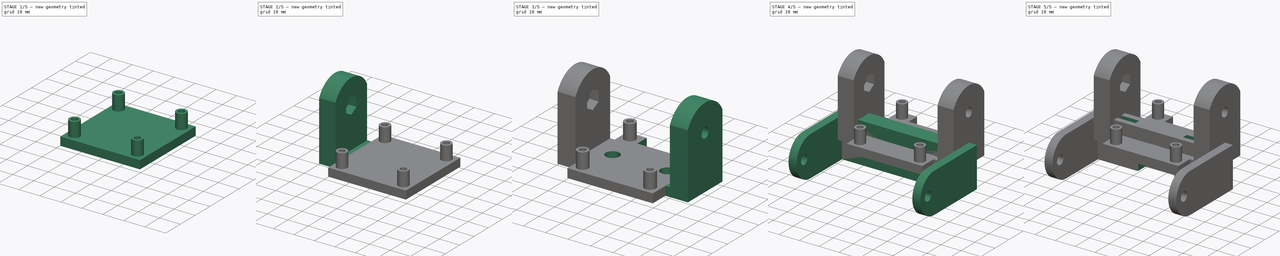
[diagram: build sequence overview — one tinted view per stage of 5, left to right]
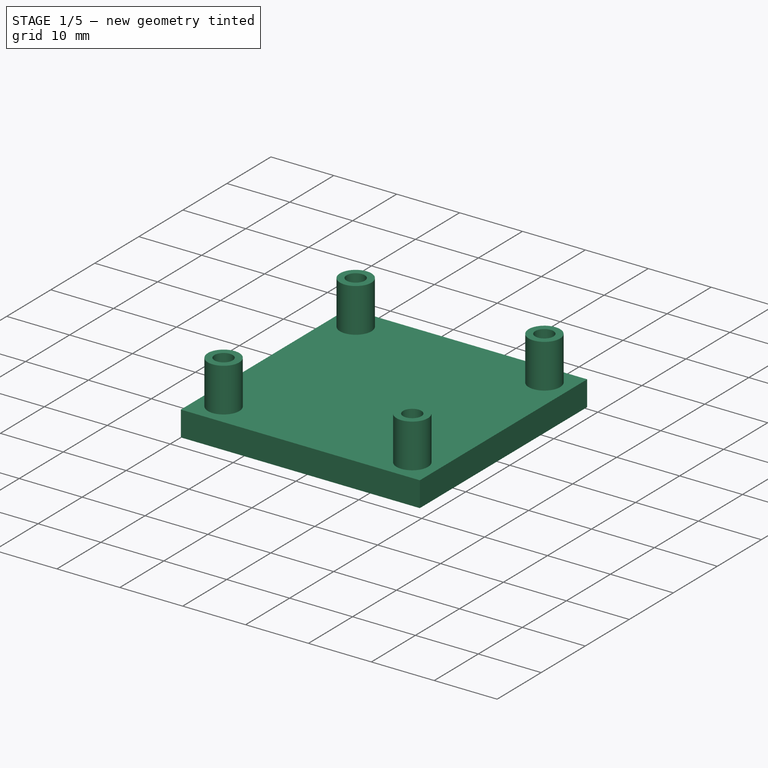
[diagram: stage 1 of 5 — iso view after this stage's code; geometry added in this stage tinted green]
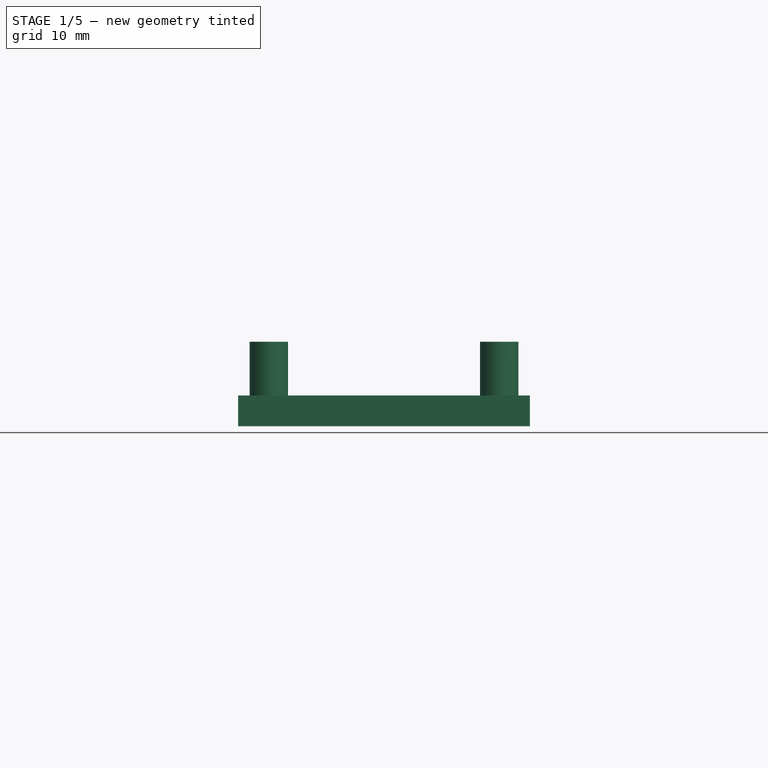
[diagram: stage 1 of 5 — front view after this stage's code; geometry added in this stage tinted green]
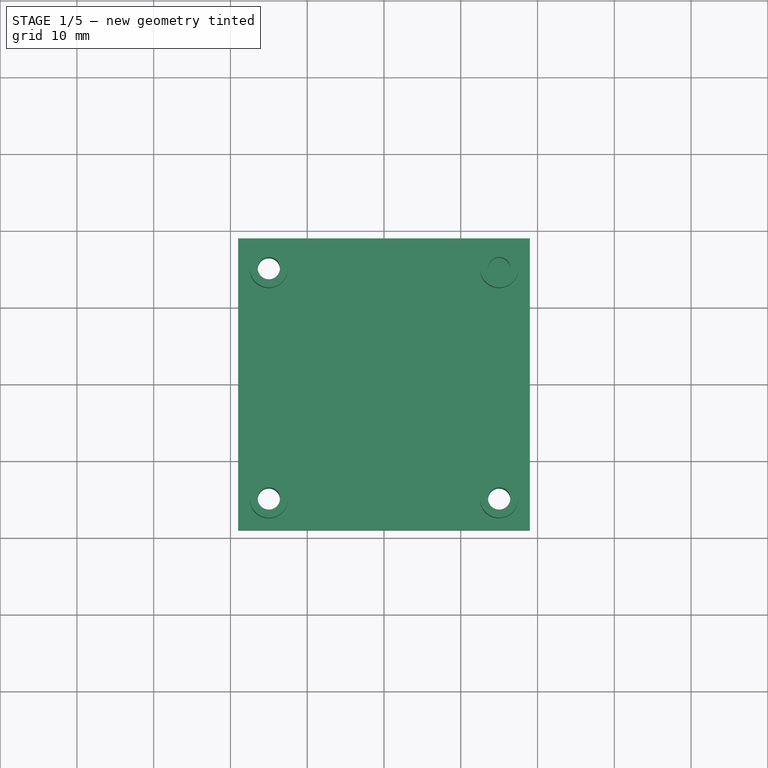
[diagram: stage 1 of 5 — top view after this stage's code; geometry added in this stage tinted green]
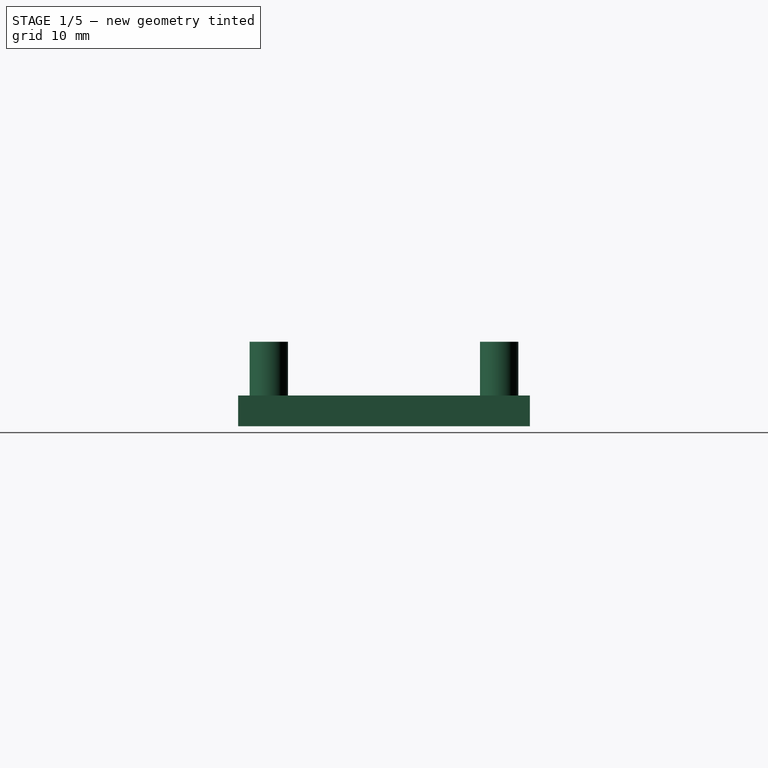
[diagram: stage 1 of 5 — right view after this stage's code; geometry added in this stage tinted green]
FCSTD DOCUMENT  (FreeCAD 1.0R39109 (Git))
Label: Camera Mount - Bottom
License: All rights reserved
LicenseURL: https://en.wikipedia.org/wiki/All_rights_reserved
objects: Sketcher::SketchObject×13, PartDesign::Pocket×9, PartDesign::Pad×6, PartDesign::Mirrored×5, PartDesign::Body×3, PartDesign::Fillet×2, PartDesign::Hole×1, App::Part×1, App::Link×1
note: 93 computed .brp shape members not serialized (recipe doc carries the construction recipe); baked Part::Feature solids carry a one-line shape summary decoded from their .brp
EXTERNAL_REF file=Master Document.FCStd obj=Spreadsheet

FEATURE [Sketcher::SketchObject] Sketch
  ArcFitTolerance = 0
  AttachmentSupport = -> [XY_Plane001]
  FullyConstrained = true
  MakeInternals = false
  MapMode = 5
  expr: Constraints[10] = <<Monitor Chassis Parameters>>.GSCamBoardWidth / 2
  expr: Constraints[11] = <<Monitor Chassis Parameters>>.GSCamBoardHeight / 2
  expr: Constraints[8] = <<Monitor Chassis Parameters>>.GSCamBoardWidth
  expr: Constraints[9] = <<Monitor Chassis Parameters>>.GSCamBoardHeight
  sketch-geometry (4):
    g0: LineSegment StartX=-19 StartY=19 StartZ=0 EndX=19 EndY=19 EndZ=0
    g1: LineSegment StartX=19 StartY=19 StartZ=0 EndX=19 EndY=-19 EndZ=0
    g2: LineSegment StartX=19 StartY=-19 StartZ=0 EndX=-19 EndY=-19 EndZ=0
    g3: LineSegment StartX=-19 StartY=-19 StartZ=0 EndX=-19 EndY=19 EndZ=0
  constraints (12):
    c: Coincident(g0,g1)
    c: Coincident(g1,g2)
    c: Coincident(g2,g3)
    c: Coincident(g3,g0)
    c: Horizontal(g0)
    c: Horizontal(g2)
    c: Vertical(g1)
    c: Vertical(g3)
    c: DistanceX(g0,g0) = 38
    c: DistanceY(g1,g1) = 38
    c: DistanceX(g2,g-1) = 19
    c: DistanceY(g2,g-1) = 19
FEATURE [PartDesign::Pad] Pad
  Direction = (0,0,1)
  Length = 4
  Length2 = 10
  Profile = -> Sketch
  ReferenceAxis = -> Sketch [N_Axis]
  Suppressed = false
  Type = 0
  expr: Length = <<Monitor Chassis Parameters>>.GSCamPlateThickness
FEATURE [Sketcher::SketchObject] Sketch001
  ArcFitTolerance = 0
  AttachmentSupport = -> [Pad]
  ExternalGeometry = -> [Pad]
  FullyConstrained = true
  MakeInternals = false
  MapMode = 5
  Placement = pos=(0,0,4) rot=(0,0,1;0rad)
  expr: Constraints[0] = <<Monitor Chassis Parameters>>.GSCamBoardMountingHoleDiameter
  expr: Constraints[10] = <<Monitor Chassis Parameters>>.GSCamMountingHoleOffset
  expr: Constraints[11] = <<Monitor Chassis Parameters>>.GSCamMountingHoleOffset
  expr: Constraints[12] = <<Monitor Chassis Parameters>>.GSCamMountingHoleOffset
  expr: Constraints[13] = <<Monitor Chassis Parameters>>.GSCamMountingHoleOffset
  expr: Constraints[14] = <<Monitor Chassis Parameters>>.GSCamMountingIndentInnerDiameter
  expr: Constraints[15] = <<Monitor Chassis Parameters>>.GSCamMountingIndentInnerDiameter
  expr: Constraints[16] = <<Monitor Chassis Parameters>>.GSCamMountingIndentInnerDiameter
  expr: Constraints[1] = <<Monitor Chassis Parameters>>.GSCamMountingHoleOffset
  expr: Constraints[2] = <<Monitor Chassis Parameters>>.GSCamMountingHoleOffset
  expr: Constraints[4] = <<Monitor Chassis Parameters>>.GSCamMountingIndentInnerDiameter
  expr: Constraints[5] = <<Monitor Chassis Parameters>>.GSCamBoardMountingHoleDiameter
  expr: Constraints[6] = <<Monitor Chassis Parameters>>.GSCamBoardMountingHoleDiameter
  expr: Constraints[7] = <<Monitor Chassis Parameters>>.GSCamBoardMountingHoleDiameter
  expr: Constraints[8] = <<Monitor Chassis Parameters>>.GSCamMountingHoleOffset
  expr: Constraints[9] = <<Monitor Chassis Parameters>>.GSCamMountingHoleOffset
  sketch-geometry (8):
    g0: Circle CenterX=-15 CenterY=15 CenterZ=0 NormalX=0 NormalY=0 NormalZ=1 AngleXU=0 Radius=1.45
    g1: Circle CenterX=-15 CenterY=15 CenterZ=0 NormalX=0 NormalY=0 NormalZ=1 AngleXU=0 Radius=2.5
    g2: Circle CenterX=15 CenterY=15 CenterZ=0 NormalX=0 NormalY=0 NormalZ=1 AngleXU=0 Radius=1.45
    g3: Circle CenterX=-15 CenterY=-15 CenterZ=0 NormalX=0 NormalY=0 NormalZ=1 AngleXU=0 Radius=1.45
    g4: Circle CenterX=15 CenterY=-15 CenterZ=0 NormalX=0 NormalY=0 NormalZ=1 AngleXU=0 Radius=1.45
    g5: Circle CenterX=-15 CenterY=-15 CenterZ=0 NormalX=0 NormalY=0 NormalZ=1 AngleXU=0 Radius=2.5
    g6: Circle CenterX=15 CenterY=-15 CenterZ=0 NormalX=0 NormalY=0 NormalZ=1 AngleXU=0 Radius=2.5
    g7: Circle CenterX=15 CenterY=15 CenterZ=0 NormalX=0 NormalY=0 NormalZ=1 AngleXU=0 Radius=2.5
  constraints (20):
    c: Diameter(g0) = 2.9
    c: DistanceX(g-3,g0) = 4
    c: DistanceY(g0,g-3) = 4
    c: Coincident(g1,g0)
    c: Diameter(g1) = 5
    c: Diameter(g2) = 2.9
    c: Diameter(g3) = 2.9
    c: Diameter(g4) = 2.9
    c: DistanceX(g2,g-4) = 4
    c: DistanceY(g2,g-4) = 4
    c: DistanceX(g4,g-5) = 4
    c: DistanceY(g-5,g4) = 4
    c: DistanceX(g-6,g3) = 4
    c: DistanceY(g-6,g3) = 4
    c: Diameter(g6) = 5
    c: Diameter(g5) = 5
    c: Diameter(g7) = 5
    c: Coincident(g7,g2)
    c: Tangent(g5,g3) = 1.5708
    c: Coincident(g6,g4)
FEATURE [PartDesign::Pad] Pad001  label="BackPlate"
  BaseFeature = -> Pad
  Direction = (0,0,1)
  Length = 7
  Length2 = 10
  Profile = -> Sketch001
  ReferenceAxis = -> Sketch001 [N_Axis]
  Suppressed = false
  Type = 0
  expr: Length = <<Monitor Chassis Parameters>>.GSCamMountingHoleHeight
FEATURE [PartDesign::Pocket] Pocket
  BaseFeature = -> Pad001
  Direction = (0,0,-1)
  Length = 5
  Length2 = 5
  Profile = -> Pad001 [Edge30]
  Suppressed = false
  Type = 0
FEATURE [PartDesign::Pocket] Pocket001
  BaseFeature = -> Pocket
  Direction = (0,0,-1)
  Length = 5
  Length2 = 5
  Profile = -> Pocket [Face21]
  Suppressed = false
  Type = 0
FEATURE [PartDesign::Pocket] Pocket002
  BaseFeature = -> Pocket001
  Direction = (0,0,-1)
  Length = 5
  Length2 = 5
  Profile = -> Pocket001 [Face21]
  Suppressed = false
  Type = 0
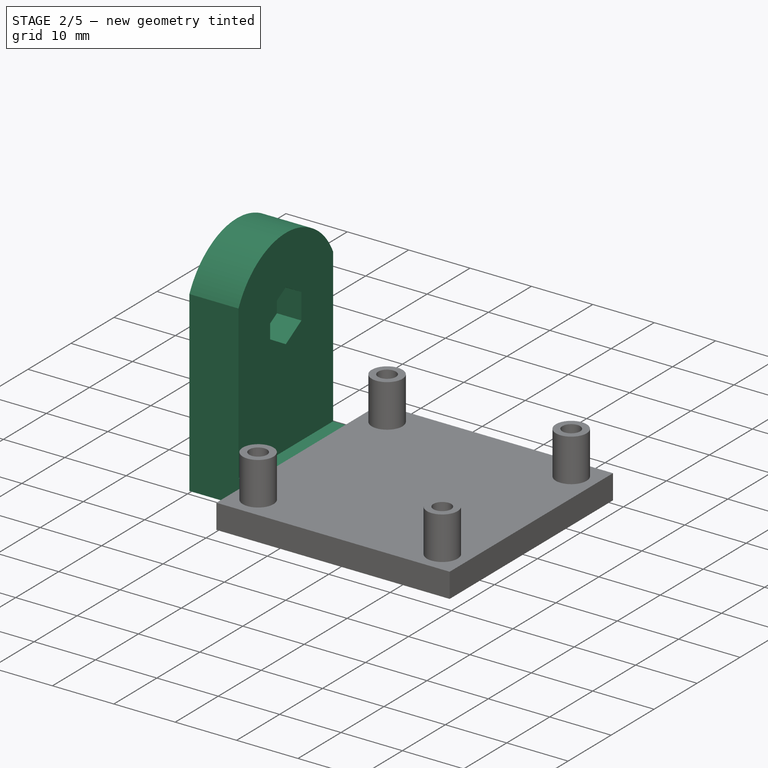
[diagram: stage 2 of 5 — iso view after this stage's code; geometry added in this stage tinted green]
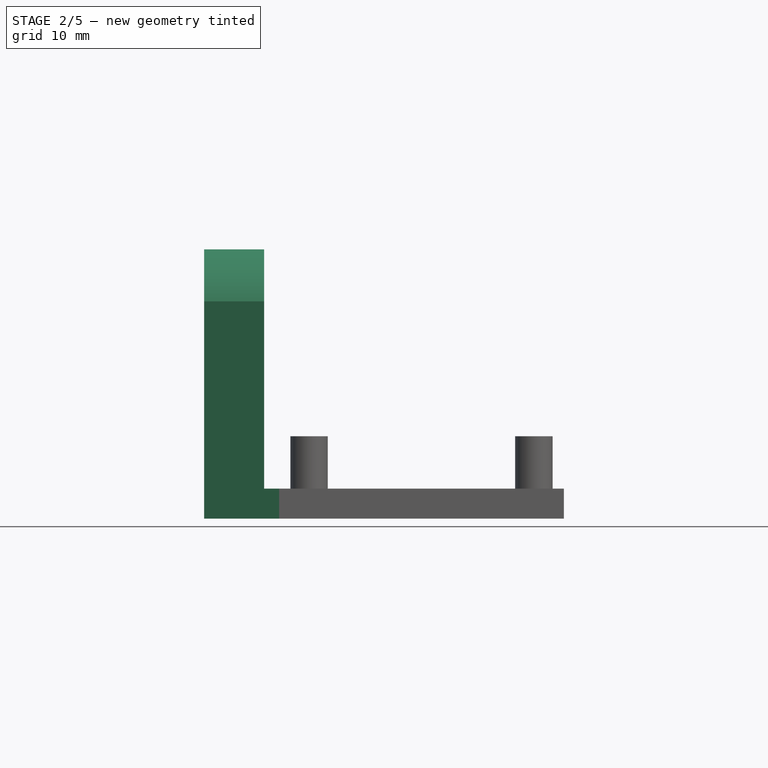
[diagram: stage 2 of 5 — front view after this stage's code; geometry added in this stage tinted green]
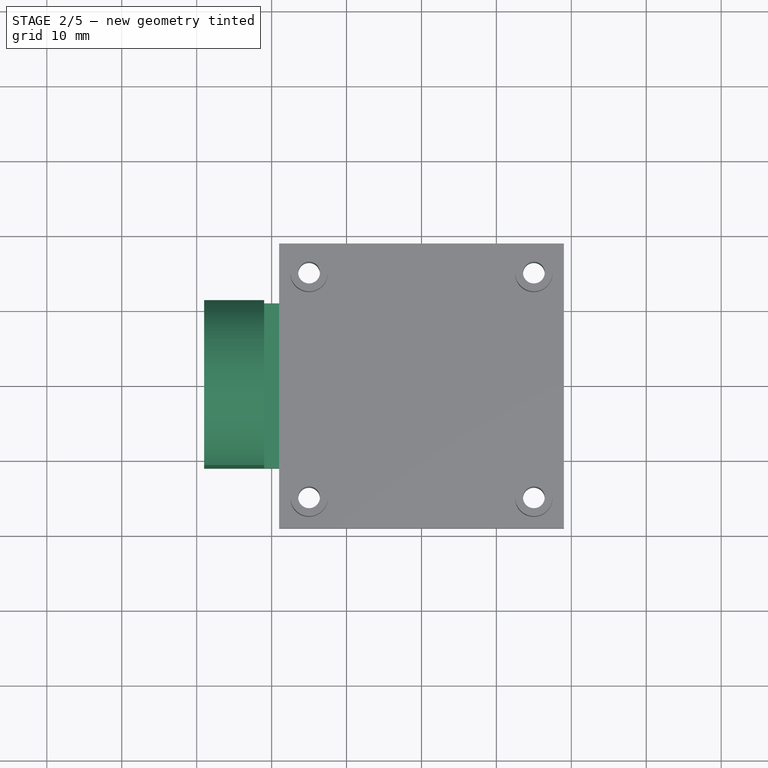
[diagram: stage 2 of 5 — top view after this stage's code; geometry added in this stage tinted green]
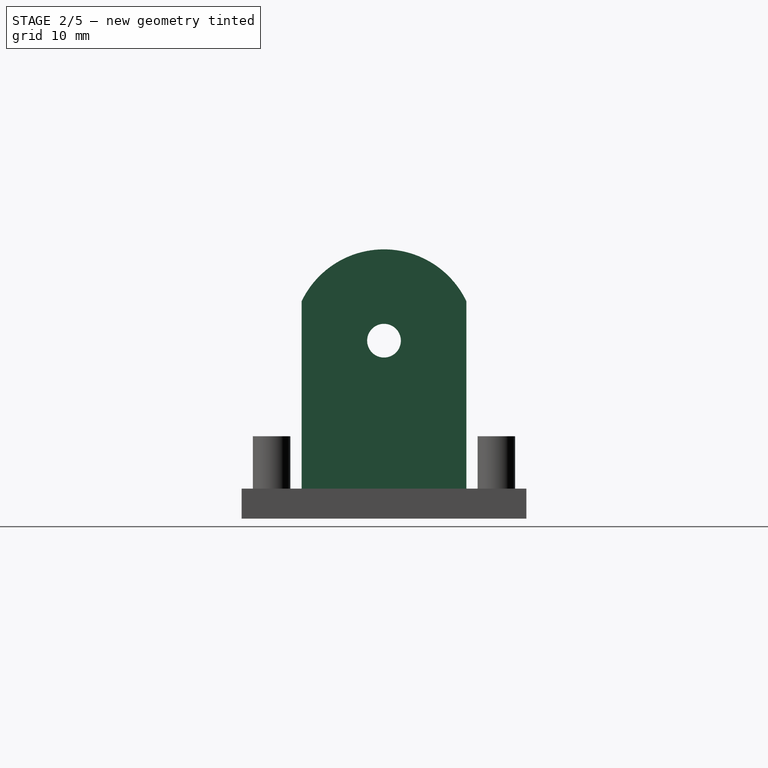
[diagram: stage 2 of 5 — right view after this stage's code; geometry added in this stage tinted green]
FEATURE [PartDesign::Pocket] Pocket003
  BaseFeature = -> Pocket002
  Direction = (0,0,-1)
  Length = 5
  Length2 = 5
  Profile = -> Pocket002 [Face22]
  Suppressed = false
  Type = 0
FEATURE [Sketcher::SketchObject] Sketch002
  ArcFitTolerance = 0
  AttachmentSupport = -> [Pocket003]
  ExternalGeometry = -> [Pocket003]
  FullyConstrained = true
  MakeInternals = false
  MapMode = 5
  Placement = pos=(-19,0,0) rot=(0.57735,-0.57735,-0.57735;2.0944rad)
  expr: Constraints[10] = <<Monitor Chassis Parameters>>.GSCamAxisWidth / 2
  expr: Constraints[11] = <<Monitor Chassis Parameters>>.GSCamAxisWidth / 2
  sketch-geometry (4):
    g0: LineSegment StartX=-11 StartY=4 StartZ=0 EndX=11 EndY=4 EndZ=0
    g1: LineSegment StartX=11 StartY=4 StartZ=0 EndX=11 EndY=0 EndZ=0
    g2: LineSegment StartX=11 StartY=0 StartZ=0 EndX=-11 EndY=0 EndZ=0
    g3: LineSegment StartX=-11 StartY=0 StartZ=0 EndX=-11 EndY=4 EndZ=0
  constraints (12):
    c: Coincident(g0,g1)
    c: Coincident(g1,g2)
    c: Coincident(g2,g3)
    c: Coincident(g3,g0)
    c: Horizontal(g0)
    c: Horizontal(g2)
    c: Vertical(g1)
    c: Vertical(g3)
    c: Horizontal(g0,g-3)
    c: Horizontal(g-4,g2)
    c: DistanceX(g-1,g1) = 11
    c: DistanceX(g2,g-1) = 11
FEATURE [PartDesign::Body] Body001  label="TiltAxis"
  AllowCompound = false
  Origin = -> Origin002
FEATURE [PartDesign::Pad] Pad002  label="Wing"
  BaseFeature = -> Pocket003
  Direction = (-1,0,0)
  Length = 2
  Length2 = 10
  Profile = -> Sketch002
  ReferenceAxis = -> Sketch002 [N_Axis]
  Suppressed = false
  Type = 0
  expr: Length = <<Monitor Chassis Parameters>>.GSCamPlateThickness - 2
FEATURE [Sketcher::SketchObject] Sketch003
  ArcFitTolerance = 0
  AttachmentSupport = -> [Pad002]
  ExternalGeometry = -> [Pad002]
  FullyConstrained = true
  MakeInternals = false
  MapMode = 5
  Placement = pos=(-21,0,0) rot=(0.57735,-0.57735,-0.57735;2.0944rad)
  expr: Constraints[10] = <<Monitor Chassis Parameters>>.GSCamPlateThickness + <<Monitor Chassis Parameters>>.GSCam2ZAxisSetback
  expr: Constraints[8] = <<Monitor Chassis Parameters>>.GSCamAxisHoleDiameter
  expr: Constraints[9] = <<Monitor Chassis Parameters>>.GSCamPlateThickness + <<Monitor Chassis Parameters>>.GSCam2ZAxisSetback - (<<Monitor Chassis Parameters>>.GSCamAxisHoleDiameter / 2 + 3)
  sketch-geometry (5):
    g0: ArcOfCircle CenterX=0 CenterY=23.75 CenterZ=0 NormalX=0 NormalY=0 NormalZ=1 AngleXU=0 Radius=12.1886 StartAngle=0.445301 EndAngle=2.69629
    g1: LineSegment StartX=-11 StartY=29 StartZ=0 EndX=-11 EndY=0 EndZ=0
    g2: LineSegment StartX=11 StartY=0 StartZ=0 EndX=-11 EndY=0 EndZ=0
    g3: LineSegment StartX=11 StartY=29 StartZ=0 EndX=11 EndY=0 EndZ=0
    g4: Circle CenterX=0 CenterY=23.75 CenterZ=0 NormalX=0 NormalY=0 NormalZ=1 AngleXU=0 Radius=2.25
  constraints (14):
    c: PointOnObject(g0,g-2)
    c: Horizontal(g0,g0)
    c: Coincident(g1,g0)
    c: Vertical(g1)
    c: Horizontal(g2)
    c: Coincident(g3,g0)
    c: Coincident(g3,g2)
    c: Vertical(g2,g0)
    c: Diameter(g4) = 4.5
    c: DistanceY(g-1,g4) = 23.75
    c: DistanceY(g1,g0) = 29
    c: Coincident(g0,g4)
    c: Coincident(g2,g-5)
    c: Coincident(g1,g2)
FEATURE [PartDesign::Pad] Pad003  label="Axis"
  BaseFeature = -> Pad002
  Direction = (-1,0,0)
  Length = 8
  Length2 = 10
  Profile = -> Sketch003
  ReferenceAxis = -> Sketch003 [N_Axis]
  Suppressed = false
  Type = 0
  expr: Length = <<Monitor Chassis Parameters>>.GSCamPlateThickness * 2
FEATURE [Sketcher::SketchObject] Sketch004
  ArcFitTolerance = 0
  AttachmentSupport = -> [Pad003]
  ExternalGeometry = -> [Pad003]
  FullyConstrained = true
  MakeInternals = false
  MapMode = 5
  Placement = pos=(-21,0,0) rot=(0.57735,0.57735,0.57735;2.0944rad)
  expr: Constraints[18] = <<Monitor Chassis Parameters>>.GSCamM4NutHexagonDiameter
  expr: Constraints[19] = <<Monitor Chassis Parameters>>.GSCamPlateThickness + <<Monitor Chassis Parameters>>.GSCam2ZAxisSetback - (<<Monitor Chassis Parameters>>.GSCamAxisHoleDiameter / 2 + 3)
  sketch-geometry (7):
    g0: LineSegment StartX=-3.63731 StartY=21.65 StartZ=0 EndX=3.0265e-12 EndY=19.55 EndZ=0
    g1: LineSegment StartX=3.0265e-12 StartY=19.55 StartZ=0 EndX=3.63731 EndY=21.65 EndZ=0
    g2: LineSegment StartX=3.63731 StartY=21.65 StartZ=0 EndX=3.63731 EndY=25.85 EndZ=0
    g3: LineSegment StartX=3.63731 StartY=25.85 StartZ=0 EndX=-1.3e-15 EndY=27.95 EndZ=0
    g4: LineSegment StartX=-1.3e-15 StartY=27.95 StartZ=0 EndX=-3.63731 EndY=25.85 EndZ=0
    g5: LineSegment StartX=-3.63731 StartY=25.85 StartZ=0 EndX=-3.63731 EndY=21.65 EndZ=0
    g6: Circle [constr] CenterX=0 CenterY=23.75 CenterZ=0 NormalX=0 NormalY=0 NormalZ=1 AngleXU=0 Radius=4.2
  constraints (17):
    c: Coincident(g0,g1)
    c: Coincident(g1,g2)
    c: Coincident(g2,g3)
    c: Coincident(g3,g4)
    c: Coincident(g4,g5)
    c: Coincident(g5,g0)
    c: Equal(g0, g1-g5) x5
    c: PointOnObject(g0,g6)
    c: PointOnObject(g1,g6)
    c: PointOnObject(g2,g6)
    c: PointOnObject(g3,g6)
    c: PointOnObject(g4,g6)
    c: PointOnObject(g5,g6)
    c: PointOnObject(g6,g-2)
    c: Diameter(g6) = 8.4
    c: DistanceY(g-1,g6) = 23.75
    c: Horizontal(g4,g2)
FEATURE [PartDesign::Pocket] Pocket004  label="NutIndent"
  BaseFeature = -> Pad003
  Direction = (-1,0,0)
  Length = 4
  Length2 = 5
  Profile = -> Sketch004
  ReferenceAxis = -> Sketch004 [N_Axis]
  Suppressed = false
  Type = 0
  expr: Length = <<Monitor Chassis Parameters>>.GSCamM4SNutDepth
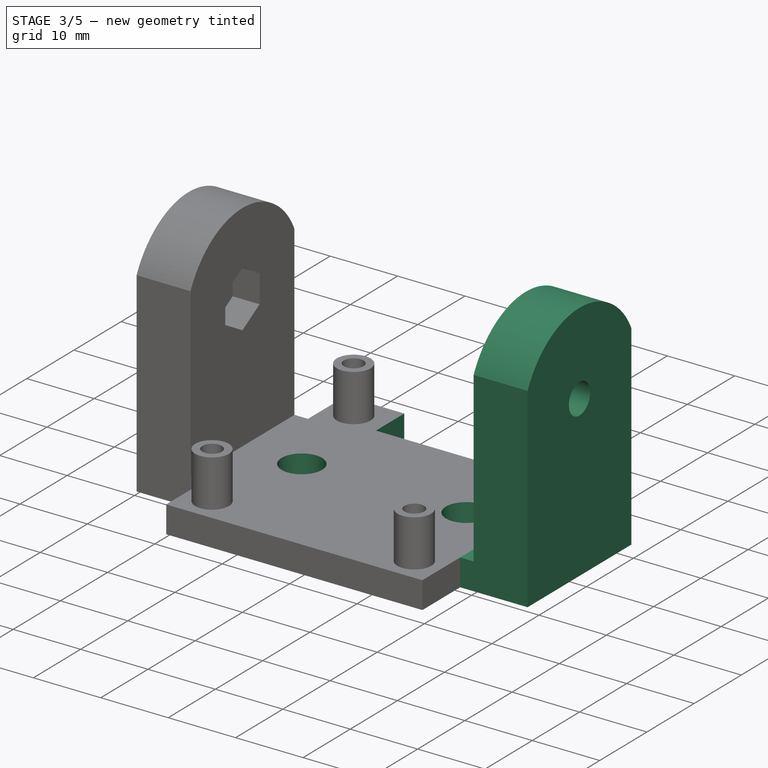
[diagram: stage 3 of 5 — iso view after this stage's code; geometry added in this stage tinted green]
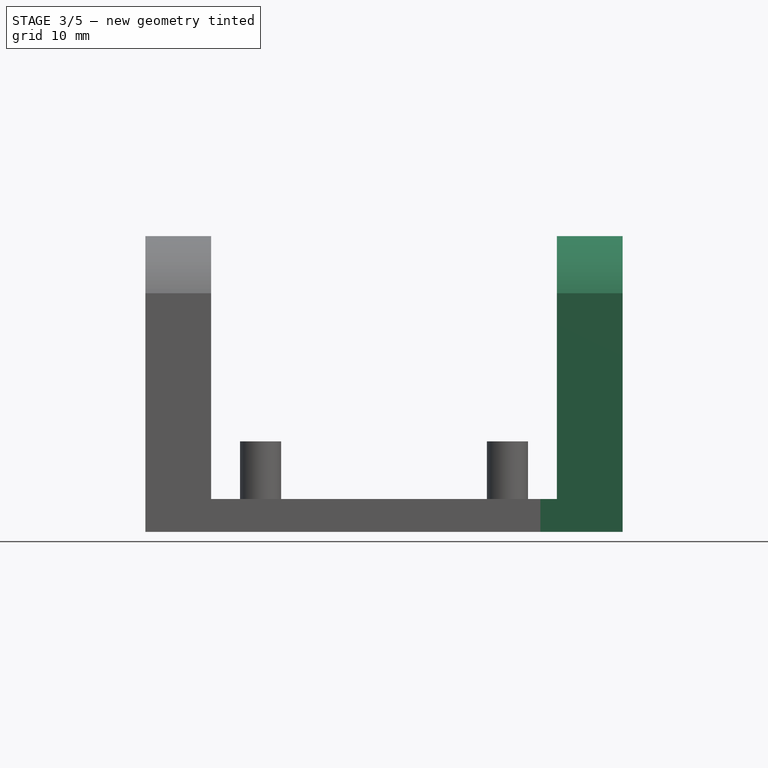
[diagram: stage 3 of 5 — front view after this stage's code; geometry added in this stage tinted green]
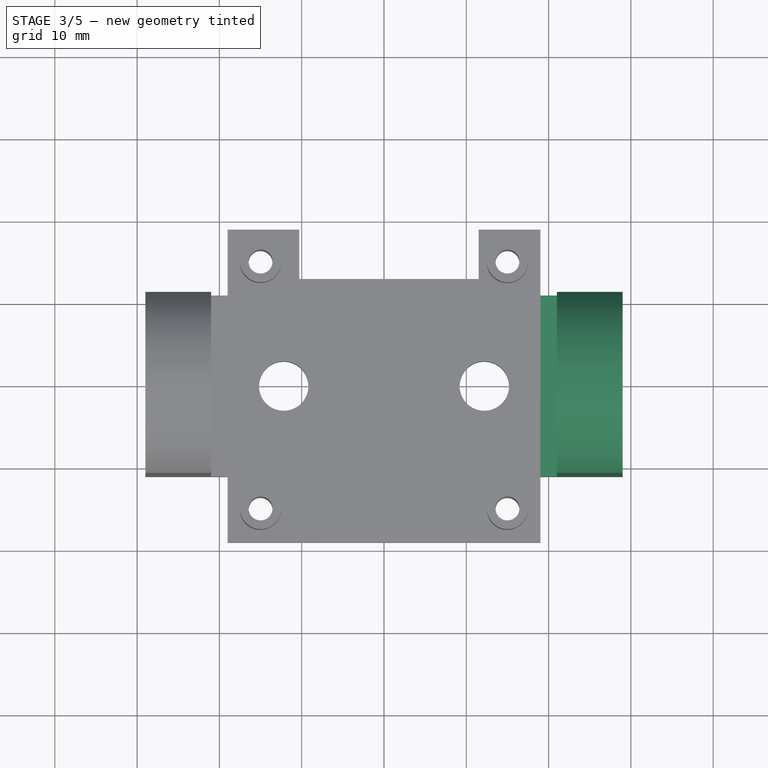
[diagram: stage 3 of 5 — top view after this stage's code; geometry added in this stage tinted green]
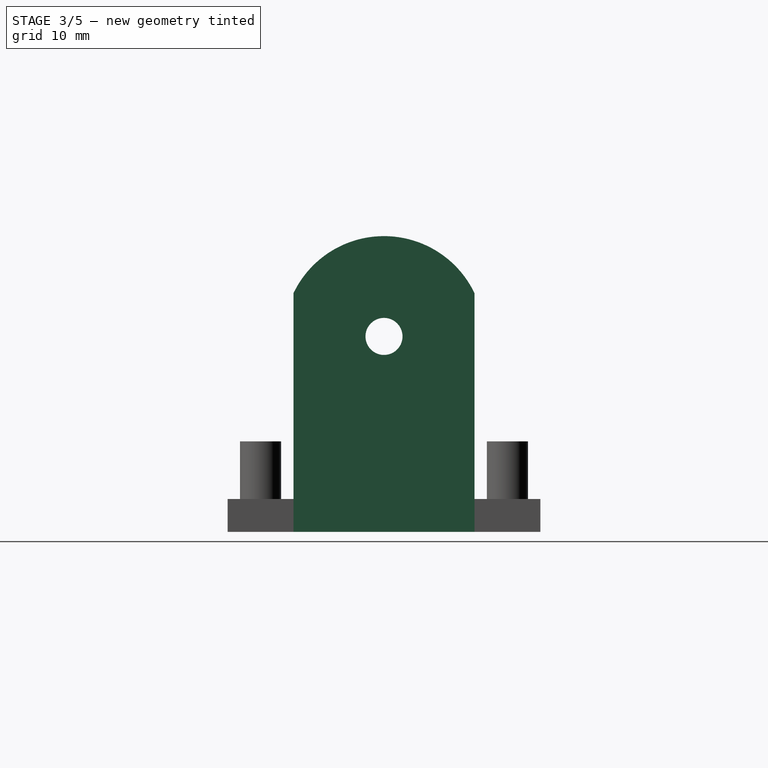
[diagram: stage 3 of 5 — right view after this stage's code; geometry added in this stage tinted green]
FEATURE [PartDesign::Mirrored] Mirrored
  BaseFeature = -> Pocket004
  MirrorPlane = -> YZ_Plane001
  Originals = -> [Pad002]
  Suppressed = false
  TransformMode = 0
FEATURE [PartDesign::Mirrored] Mirrored001
  BaseFeature = -> Mirrored
  MirrorPlane = -> YZ_Plane001
  Originals = -> [Pad003]
  Suppressed = false
  TransformMode = 0
FEATURE [PartDesign::Mirrored] Mirrored002
  BaseFeature = -> Mirrored001
  MirrorPlane = -> YZ_Plane001
  Originals = -> [Pocket004]
  Suppressed = false
  TransformMode = 0
FEATURE [Sketcher::SketchObject] Sketch008
  ArcFitTolerance = 0
  AttachmentSupport = -> [XY_Plane001]
  FullyConstrained = true
  MakeInternals = false
  MapMode = 5
FEATURE [Sketcher::SketchObject] Sketch009
  ArcFitTolerance = 0
  AttachmentSupport = -> [Mirrored002]
  ExternalGeometry = -> [Mirrored002]
  FullyConstrained = true
  MakeInternals = false
  MapMode = 5
  Placement = pos=(0,0,0) rot=(1,0,0;3.14159rad)
  expr: Constraints[1] = <<Monitor Chassis Parameters>>.GSCamBoardMountingHoleDiameter * 2
  expr: Constraints[3] = <<Monitor Chassis Parameters>>.GSCamBoardMountingHoleDiameter * 2
  sketch-geometry (2):
    g0: Circle CenterX=-12.19 CenterY=0 CenterZ=0 NormalX=0 NormalY=0 NormalZ=1 AngleXU=0 Radius=2.9
    g1: Circle CenterX=12.19 CenterY=0 CenterZ=0 NormalX=0 NormalY=0 NormalZ=1 AngleXU=0 Radius=2.9
  constraints (6):
    c: Horizontal(g0,g-1)
    c: Diameter(g0) = 5.8
    c: DistanceX(g-3,g0) = 6.81
    c: Diameter(g1) = 5.8
    c: Horizontal(g1,g-1)
    c: DistanceX(g1,g-4) = 6.81
FEATURE [PartDesign::Hole] Hole  label="Backscrew Holes"
  BaseFeature = -> Mirrored002
  CustomThreadClearance = 0
  Depth = 25
  DepthType = 0
  Diameter = 6
  DrillForDepth = false
  DrillPoint = 1
  DrillPointAngle = 118
  HoleCutCountersinkAngle = 90
  HoleCutCustomValues = false
  HoleCutDepth = 0
  HoleCutDiameter = 6.1
  HoleCutType = 0
  ModelThread = false
  Profile = -> Sketch009
  Suppressed = false
  Tapered = false
  TaperedAngle = 90
  ThreadClass = 0
  ThreadDepth = 25
  ThreadDepthType = 0
  ThreadDirection = 0
  ThreadFit = 0
  ThreadSize = 0
  ThreadType = 0
  Threaded = false
  UseCustomThreadClearance = false
FEATURE [Sketcher::SketchObject] Sketch010
  ArcFitTolerance = 0
  AttachmentSupport = -> [Hole]
  ExternalGeometry = -> [Hole]
  FullyConstrained = true
  MakeInternals = false
  MapMode = 5
  Placement = pos=(0,0,0) rot=(1,0,0;3.14159rad)
  expr: Constraints[9] = <<Monitor Chassis Parameters>>.GSCamBoardMountingHoleDiameter * 3
  sketch-geometry (4):
    g0: LineSegment StartX=-10.3 StartY=-13 StartZ=0 EndX=11.5 EndY=-13 EndZ=0
    g1: LineSegment StartX=11.5 StartY=-13 StartZ=0 EndX=11.5 EndY=-19 EndZ=0
    g2: LineSegment StartX=11.5 StartY=-19 StartZ=0 EndX=-10.3 EndY=-19 EndZ=0
    g3: LineSegment StartX=-10.3 StartY=-19 StartZ=0 EndX=-10.3 EndY=-13 EndZ=0
  constraints (12):
    c: Coincident(g0,g1)
    c: Coincident(g1,g2)
    c: Coincident(g2,g3)
    c: Coincident(g3,g0)
    c: Horizontal(g0)
    c: Horizontal(g2)
    c: Vertical(g1)
    c: Vertical(g3)
    c: DistanceY(g1,g1) = 6
    c: DistanceX(g-3,g0) = 8.7
    c: Horizontal(g-3,g2)
    c: DistanceX(g1,g-4) = 7.5
FEATURE [PartDesign::Pocket] Pocket006  label="CableIndent Pad"
  BaseFeature = -> Hole
  Direction = (0,0,1)
  Length = 5
  Length2 = 5
  Profile = -> Sketch010
  ReferenceAxis = -> Sketch010 [N_Axis]
  Suppressed = false
  Type = 0
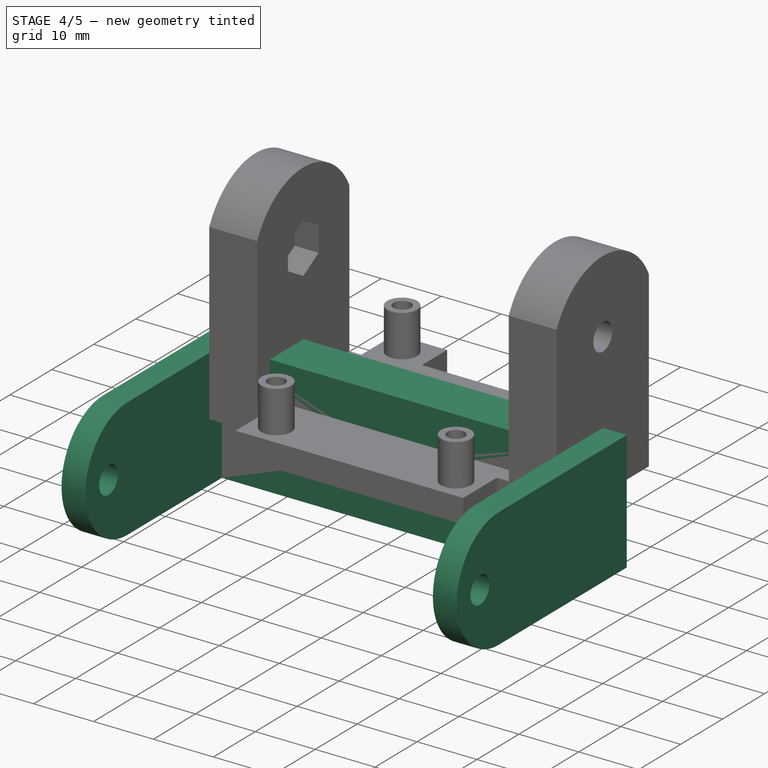
[diagram: stage 4 of 5 — iso view after this stage's code; geometry added in this stage tinted green]
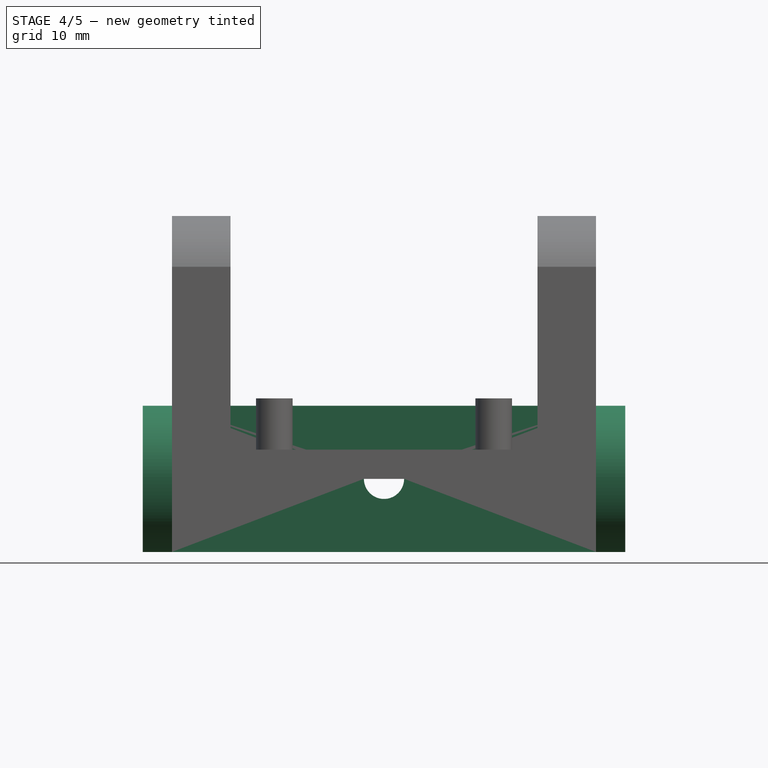
[diagram: stage 4 of 5 — front view after this stage's code; geometry added in this stage tinted green]
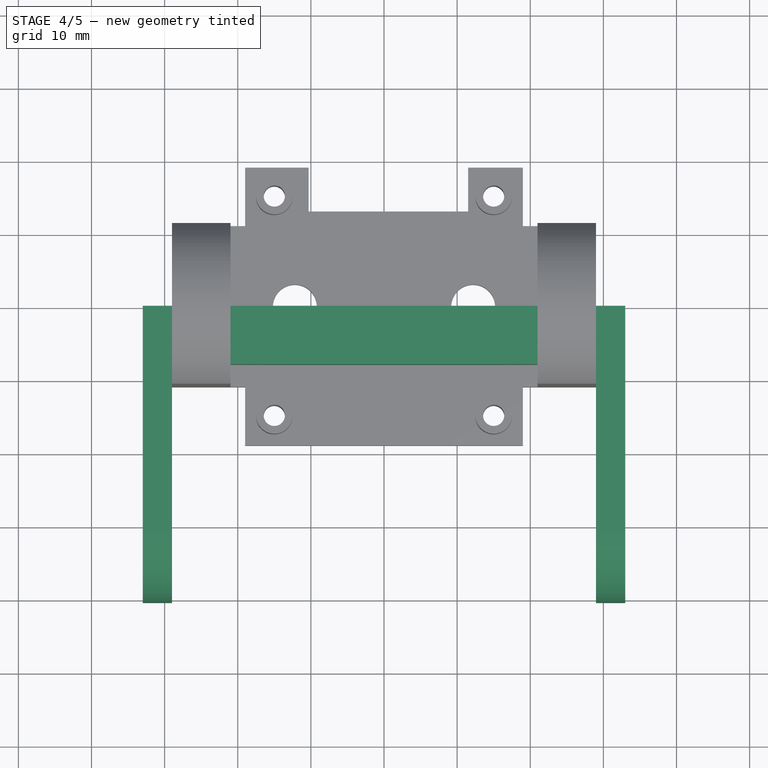
[diagram: stage 4 of 5 — top view after this stage's code; geometry added in this stage tinted green]
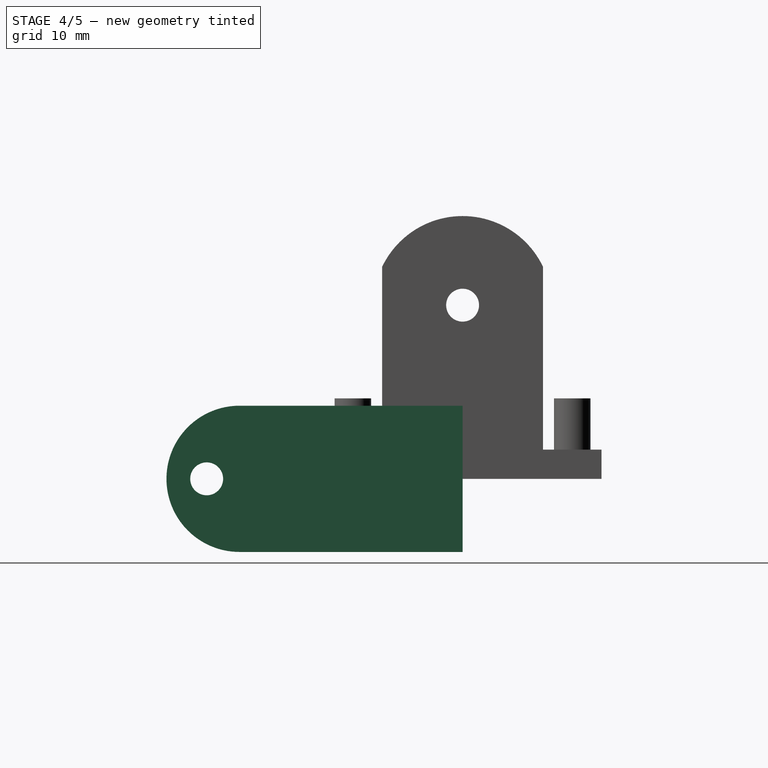
[diagram: stage 4 of 5 — right view after this stage's code; geometry added in this stage tinted green]
FEATURE [Sketcher::SketchObject] Sketch005
  ArcFitTolerance = 0
  AttachmentSupport = -> [XZ_Plane003]
  FullyConstrained = true
  MakeInternals = false
  MapMode = 5
  Placement = pos=(0,0,0) rot=(1,0,0;1.5708rad)
  expr: Constraints[10] = <<Monitor Chassis Parameters>>.GSCamGimbalDepth
  expr: Constraints[11] = <<Monitor Chassis Parameters>>.GSCamGimbalDepth / 2
  expr: Constraints[13] = <<Monitor Chassis Parameters>>.GSCamM5ScrewHoleDiameter
  expr: Constraints[8] = <<Monitor Chassis Parameters>>.GSCamGimbalInnerLength
  expr: Constraints[9] = <<Monitor Chassis Parameters>>.GSCamGimbalInnerLength / 2
  sketch-geometry (5):
    g0: LineSegment StartX=-29 StartY=-10 StartZ=0 EndX=29 EndY=-10 EndZ=0
    g1: LineSegment StartX=29 StartY=-10 StartZ=0 EndX=29 EndY=10 EndZ=0
    g2: LineSegment StartX=29 StartY=10 StartZ=0 EndX=-29 EndY=10 EndZ=0
    g3: LineSegment StartX=-29 StartY=10 StartZ=0 EndX=-29 EndY=-10 EndZ=0
    g4: Circle CenterX=0 CenterY=0 CenterZ=0 NormalX=0 NormalY=0 NormalZ=1 AngleXU=0 Radius=2.75
  constraints (14):
    c: Coincident(g0,g1)
    c: Coincident(g1,g2)
    c: Coincident(g2,g3)
    c: Coincident(g3,g0)
    c: Horizontal(g0)
    c: Horizontal(g2)
    c: Vertical(g1)
    c: Vertical(g3)
    c: DistanceX(g0,g0) = 58
    c: DistanceX(g0,g-1) = 29
    c: DistanceY(g1,g1) = 20
    c: DistanceY(g0,g-1) = 10
    c: Coincident(g4,g-1)
    c: Diameter(g4) = 5.5
FEATURE [PartDesign::Pad] Pad004  label="GimbalBase"
  Direction = (0,-1,2e-16)
  Length = 8
  Length2 = 10
  Placement = pos=(0,0,0) rot=(1,0,0;1.5708rad)
  Profile = -> Sketch005
  ReferenceAxis = -> Sketch005 [N_Axis]
  Suppressed = false
  Type = 0
  expr: Length = <<Monitor Chassis Parameters>>.GSCamPlateThickness * 2
FEATURE [Sketcher::SketchObject] Sketch006
  ArcFitTolerance = 0
  AttachmentSupport = -> [Pad004]
  ExternalGeometry = -> [Pad004]
  FullyConstrained = true
  MakeInternals = false
  MapMode = 5
  Placement = pos=(-29,0,0) rot=(0.707107,0,-0.707107;3.14159rad)
  expr: Constraints[13] = <<Monitor Chassis Parameters>>.GSCam2GimbalHoleHeight - <<Monitor Chassis Parameters>>.GSCamAxisHoleDiameter * 1
  expr: Constraints[8] = <<Monitor Chassis Parameters>>.GSCamAxisHoleDiameter
  expr: Constraints[9] = <<Monitor Chassis Parameters>>.GSCam2GimbalHoleHeight
  sketch-geometry (5):
    g0: LineSegment StartX=-10 StartY=0 StartZ=0 EndX=10 EndY=-3.6e-15 EndZ=0
    g1: LineSegment StartX=10 StartY=-3.6e-15 StartZ=0 EndX=10 EndY=30.5 EndZ=0
    g2: LineSegment StartX=-10 StartY=30.5 StartZ=0 EndX=-10 EndY=0 EndZ=0
    g3: ArcOfCircle CenterX=-2e-16 CenterY=30.5 CenterZ=0 NormalX=0 NormalY=0 NormalZ=1 AngleXU=0 Radius=10 StartAngle=1e-16 EndAngle=3.14159
    g4: Circle CenterX=0 CenterY=35 CenterZ=0 NormalX=0 NormalY=0 NormalZ=1 AngleXU=0 Radius=2.25
  constraints (14):
    c: Coincident(g0,g1)
    c: Coincident(g2,g0)
    c: Vertical(g1)
    c: Vertical(g2)
    c: Coincident(g-3,g0)
    c: Coincident(g-4,g0)
    c: Coincident(g3,g1)
    c: PointOnObject(g4,g-2)
    c: Diameter(g4) = 4.5
    c: DistanceY(g-1,g4) = 35
    c: Horizontal(g3,g3)
    c: Horizontal(g1,g3)
    c: Coincident(g3,g2)
    c: DistanceY(g-1,g3) = 30.5
FEATURE [PartDesign::Pad] Pad005  label="GimbalRiser"
  BaseFeature = -> Pad004
  Direction = (-1,0,-2e-16)
  Length = 4
  Length2 = 10
  Placement = pos=(0,0,0) rot=(1,0,0;1.5708rad)
  Profile = -> Sketch006
  ReferenceAxis = -> Sketch006 [N_Axis]
  Suppressed = false
  Type = 0
  expr: Length = <<Monitor Chassis Parameters>>.GSCamPlateThickness
FEATURE [PartDesign::Mirrored] Mirrored003
  BaseFeature = -> Pad005
  MirrorPlane = -> YZ_Plane003
  Originals = -> [Pad005]
  Placement = pos=(0,0,0) rot=(1,0,0;1.5708rad)
  Suppressed = false
  TransformMode = 0
FEATURE [PartDesign::Body] Body002  label="Gimbal"
  AllowCompound = false
  Group = -> [Sketch005,Pad004,Sketch006,Pad005,Mirrored003,Sketch007,Pocket005,Sketch011,Pocket007,Mirrored004,Sketch012,Pocket008,Fillet]
  Origin = -> Origin003
  Placement = pos=(0,-15,-23) rot=(1,0,0;3.14159rad)
  Tip = -> Fillet
FEATURE [PartDesign::Fillet] Fillet001
  Base = -> Pocket006 [Edge6,Edge7,Edge5]
  BaseFeature = -> Pocket006
  Radius = 0.5
  SupportTransform = false
  Suppressed = false
  UseAllEdges = false
FEATURE [PartDesign::Body] Body  label="BackPlate Body"
  AllowCompound = false
  Group = -> [Sketch,Pad,Sketch001,Pad001,Pocket,Pocket001,Pocket002,Pocket003,Sketch002,Pad002,Sketch003,Pad003,Sketch004,Pocket004,Mirrored,Mirrored001,Mirrored002,Sketch008,Sketch009,Hole,Sketch010,Pocket006,Fillet001]
  Origin = -> Origin001
  Placement = pos=(0,13.8181,-0.556442) rot=(1,0,0;3.40339rad)
  Tip = -> Fillet001
FEATURE [App::Part] Part  label="Camera Mount - Bottom Object"
  Group = -> [Body,Body001,Body002]
  Origin = -> Origin
FEATURE [App::Link] Link  label="Monitor Chassis Parameters"
  LinkedObject = -> <external Master Document.FCStd>#Spreadsheet
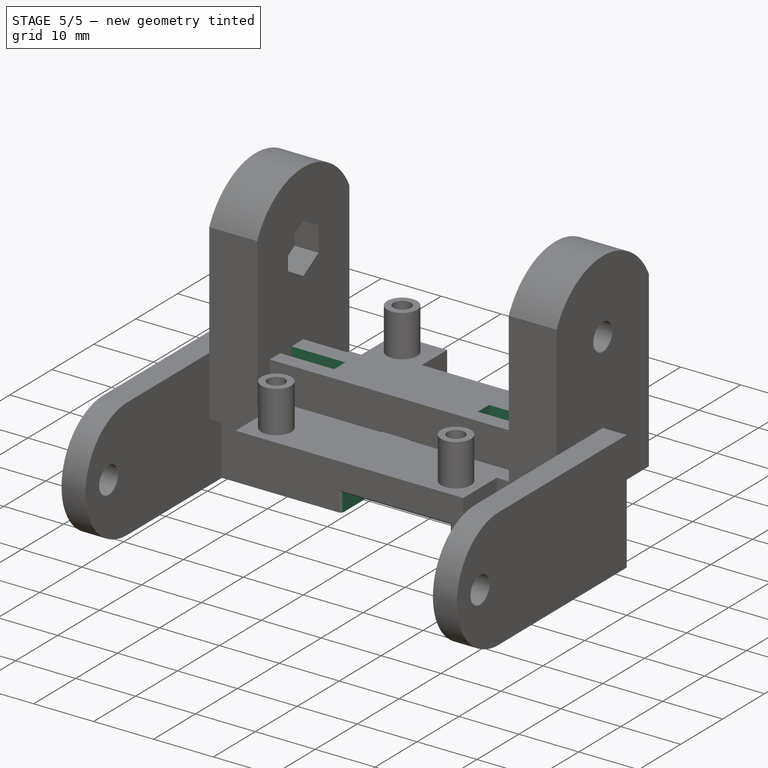
[diagram: stage 5 of 5 — iso view after this stage's code; geometry added in this stage tinted green]
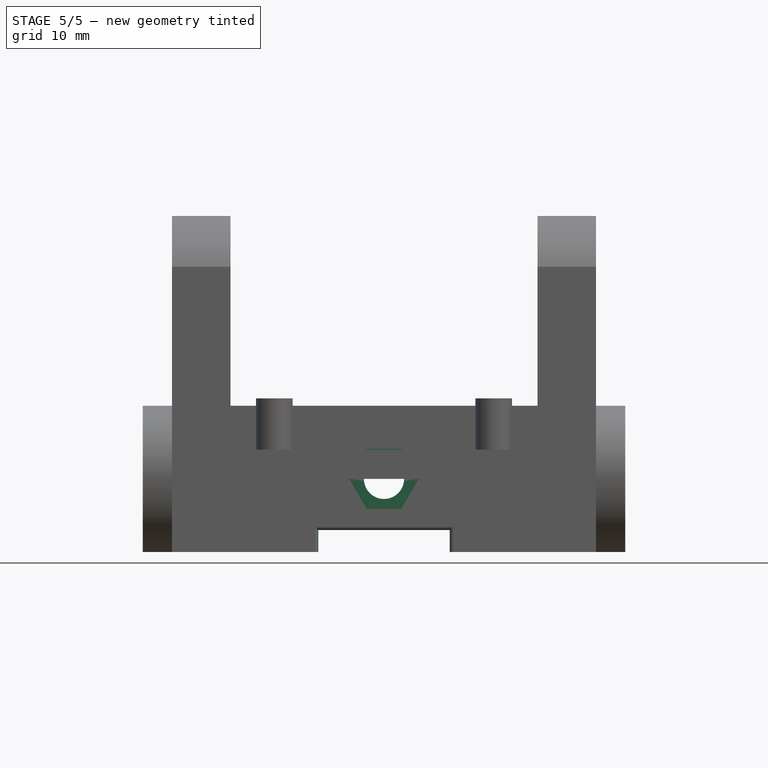
[diagram: stage 5 of 5 — front view after this stage's code; geometry added in this stage tinted green]
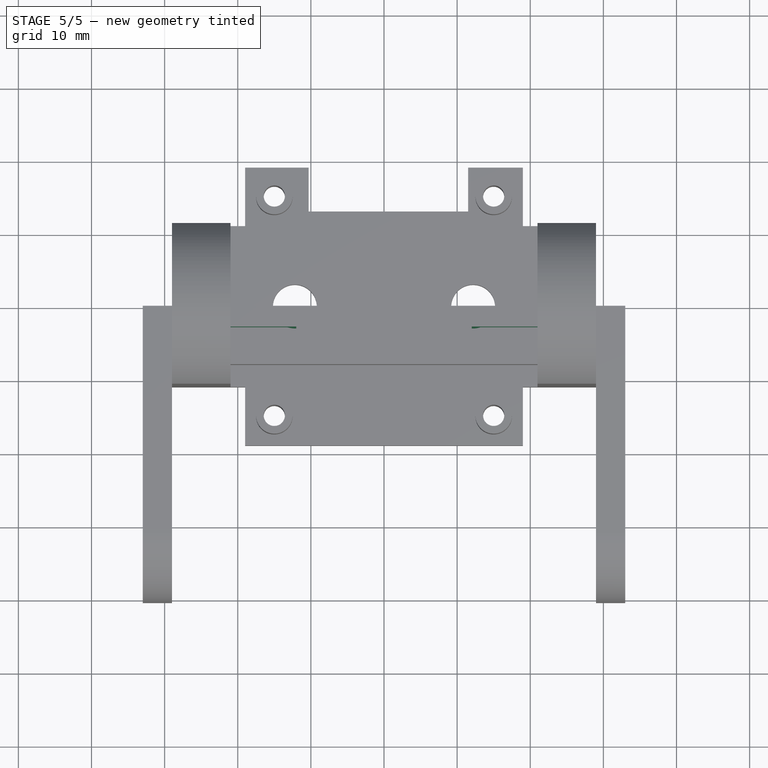
[diagram: stage 5 of 5 — top view after this stage's code; geometry added in this stage tinted green]
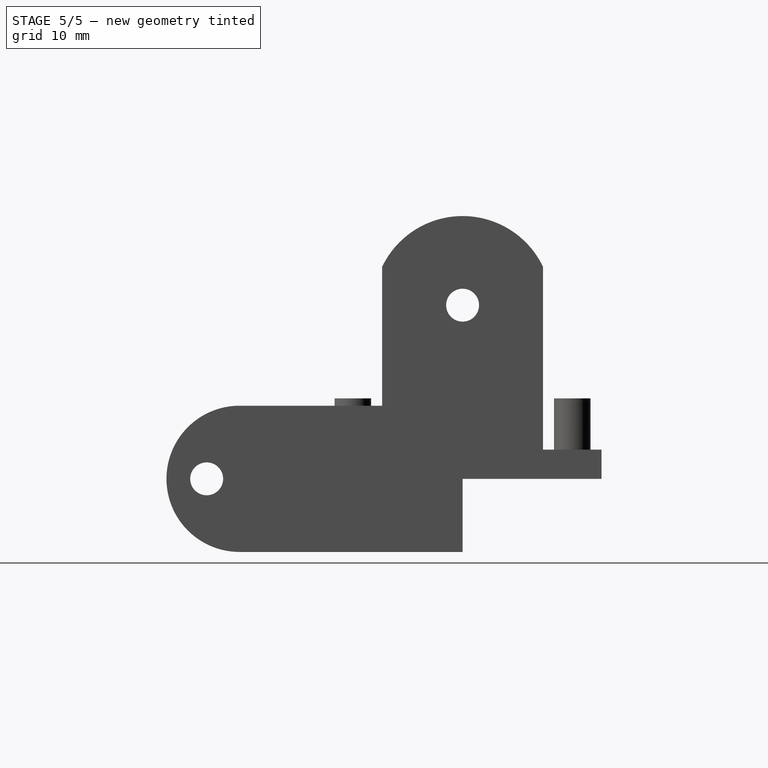
[diagram: stage 5 of 5 — right view after this stage's code; geometry added in this stage tinted green]
FEATURE [Sketcher::SketchObject] Sketch007
  ArcFitTolerance = 0
  AttachmentSupport = -> [Mirrored003]
  FullyConstrained = true
  MakeInternals = false
  MapMode = 5
  Placement = pos=(0,-8,0) rot=(1,0,0;1.5708rad)
  expr: Constraints[18] = <<Monitor Chassis Parameters>>.GSCamM5NutHexagonDiameter
  sketch-geometry (7):
    g0: LineSegment StartX=2.37498 StartY=4.11363 StartZ=0 EndX=-2.37502 EndY=4.11361 EndZ=0
    g1: LineSegment StartX=-2.37502 StartY=4.11361 StartZ=0 EndX=-4.75 EndY=-2.17051e-05 EndZ=0
    g2: LineSegment StartX=-4.75 StartY=-2.17051e-05 StartZ=0 EndX=-2.37498 EndY=-4.11363 EndZ=0
    g3: LineSegment StartX=-2.37498 StartY=-4.11363 StartZ=0 EndX=2.37502 EndY=-4.11361 EndZ=0
    g4: LineSegment StartX=2.37502 StartY=-4.11361 StartZ=0 EndX=4.75 EndY=2.17051e-05 EndZ=0
    g5: LineSegment StartX=4.75 StartY=2.17051e-05 StartZ=0 EndX=2.37498 EndY=4.11363 EndZ=0
    g6: Circle [constr] CenterX=0 CenterY=0 CenterZ=0 NormalX=0 NormalY=0 NormalZ=1 AngleXU=0 Radius=4.75
  constraints (16):
    c: Coincident(g0,g1)
    c: Coincident(g1,g2)
    c: Coincident(g2,g3)
    c: Coincident(g3,g4)
    c: Coincident(g4,g5)
    c: Coincident(g5,g0)
    c: Equal(g0, g1-g5) x5
    c: PointOnObject(g0,g6)
    c: PointOnObject(g1,g6)
    c: PointOnObject(g2,g6)
    c: PointOnObject(g3,g6)
    c: PointOnObject(g4,g6)
    c: PointOnObject(g5,g6)
    c: Coincident(g6,g-1)
    c: Diameter(g6) = 9.5
    c: DistanceX(g0,g0) = 4.75
FEATURE [PartDesign::Pocket] Pocket005  label="BaseNutIndent"
  BaseFeature = -> Mirrored003
  Direction = (0,1,-2e-16)
  Length = 4
  Length2 = 5
  Placement = pos=(0,0,0) rot=(1,0,0;1.5708rad)
  Profile = -> Sketch007
  ReferenceAxis = -> Sketch007 [N_Axis]
  Suppressed = false
  Type = 0
  expr: Length = <<Monitor Chassis Parameters>>.GSCamM5NutDepth
FEATURE [Sketcher::SketchObject] Sketch011
  ArcFitTolerance = 0
  AttachmentSupport = -> [Pocket005]
  ExternalGeometry = -> [Pocket005]
  FullyConstrained = false
  MakeInternals = false
  MapMode = 5
  Placement = pos=(0,4.4e-15,10) rot=(0,0,1;3.14159rad)
  expr: Constraints[10] = <<Monitor Chassis Parameters>>.GSCamGimbalLighteningSlotOffsetFromCenter
  expr: Constraints[8] = <<Monitor Chassis Parameters>>.GSCamPlateThickness * 2 / 3
  expr: Constraints[9] = <<Monitor Chassis Parameters>>.GSCamPlateThickness * 1.5
  sketch-geometry (4):
    g0: LineSegment StartX=-27 StartY=5.50284 StartZ=0 EndX=-12 EndY=5.50284 EndZ=0
    g1: LineSegment StartX=-12 StartY=5.50284 StartZ=0 EndX=-12 EndY=2.83617 EndZ=0
    g2: LineSegment StartX=-12 StartY=2.83617 StartZ=0 EndX=-27 EndY=2.83617 EndZ=0
    g3: LineSegment StartX=-27 StartY=2.83617 StartZ=0 EndX=-27 EndY=5.50284 EndZ=0
  constraints (11):
    c: Coincident(g0,g1)
    c: Coincident(g1,g2)
    c: Coincident(g2,g3)
    c: Coincident(g3,g0)
    c: Horizontal(g0)
    c: Horizontal(g2)
    c: Vertical(g1)
    c: Vertical(g3)
    c: DistanceY(g3,g3) = 2.66667
    c: DistanceX(g-3,g2) = 6
    c: DistanceX(g1,g-1) = 12
FEATURE [PartDesign::Pocket] Pocket007  label="LighteningHole1"
  BaseFeature = -> Pocket005
  Direction = (0,0,-1)
  Length = 0
  Length2 = 5
  Placement = pos=(0,0,0) rot=(1,0,0;1.5708rad)
  Profile = -> Sketch011
  ReferenceAxis = -> Sketch011 [N_Axis]
  Suppressed = false
  Type = 2
FEATURE [PartDesign::Mirrored] Mirrored004
  BaseFeature = -> Pocket007
  MirrorPlane = -> YZ_Plane003
  Originals = -> [Pocket007]
  Placement = pos=(0,0,0) rot=(1,0,0;1.5708rad)
  Suppressed = false
  TransformMode = 0
FEATURE [Sketcher::SketchObject] Sketch012
  ArcFitTolerance = 0
  AttachmentSupport = -> [Mirrored004]
  ExternalGeometry = -> [Mirrored004]
  FullyConstrained = true
  MakeInternals = false
  MapMode = 5
  Placement = pos=(0,0,0) rot=(-1,0,0;1.5708rad)
  expr: Constraints[10] = <<Monitor Chassis Parameters>>.GSCamGimbalLighteningSlotOffsetFromCenter - 3
  expr: Constraints[9] = <<Monitor Chassis Parameters>>.GSCamGimbalLighteningSlotOffsetFromCenter - 3
  sketch-geometry (4):
    g0: LineSegment StartX=-9 StartY=10 StartZ=0 EndX=9 EndY=10 EndZ=0
    g1: LineSegment StartX=9 StartY=10 StartZ=0 EndX=9 EndY=7 EndZ=0
    g2: LineSegment StartX=9 StartY=7 StartZ=0 EndX=-9 EndY=7 EndZ=0
    g3: LineSegment StartX=-9 StartY=7 StartZ=0 EndX=-9 EndY=10 EndZ=0
  constraints (12):
    c: Coincident(g0,g1)
    c: Coincident(g1,g2)
    c: Coincident(g2,g3)
    c: Coincident(g3,g0)
    c: Horizontal(g0)
    c: Horizontal(g2)
    c: Vertical(g1)
    c: Vertical(g3)
    c: Horizontal(g0,g-3)
    c: DistanceX(g0,g-1) = 9
    c: DistanceX(g-1,g0) = 9
    c: DistanceY(g2,g0) = 3
FEATURE [PartDesign::Pocket] Pocket008
  BaseFeature = -> Mirrored004
  Direction = (0,-1,-2e-16)
  Length = 5
  Length2 = 5
  Placement = pos=(0,0,0) rot=(1,0,0;1.5708rad)
  Profile = -> Sketch012
  ReferenceAxis = -> Sketch012 [N_Axis]
  Suppressed = false
  Type = 2
FEATURE [PartDesign::Fillet] Fillet
  Base = -> Pocket008 [Edge19,Edge20,Edge17]
  BaseFeature = -> Pocket008
  Placement = pos=(0,0,0) rot=(1,0,0;1.5708rad)
  Radius = 0.5
  SupportTransform = false
  Suppressed = false
  UseAllEdges = false
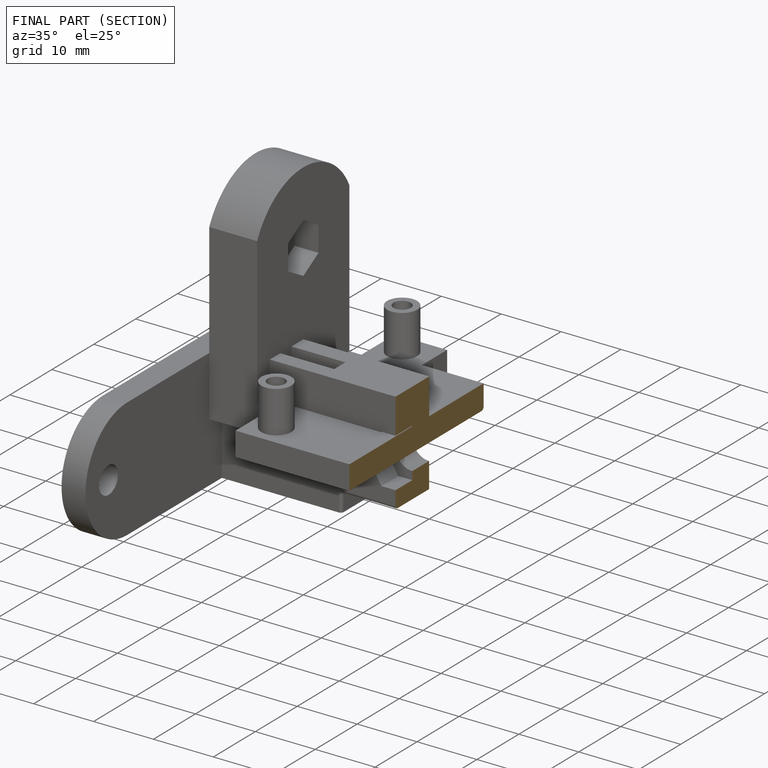
[diagram: finished part — half-section view (interior)]
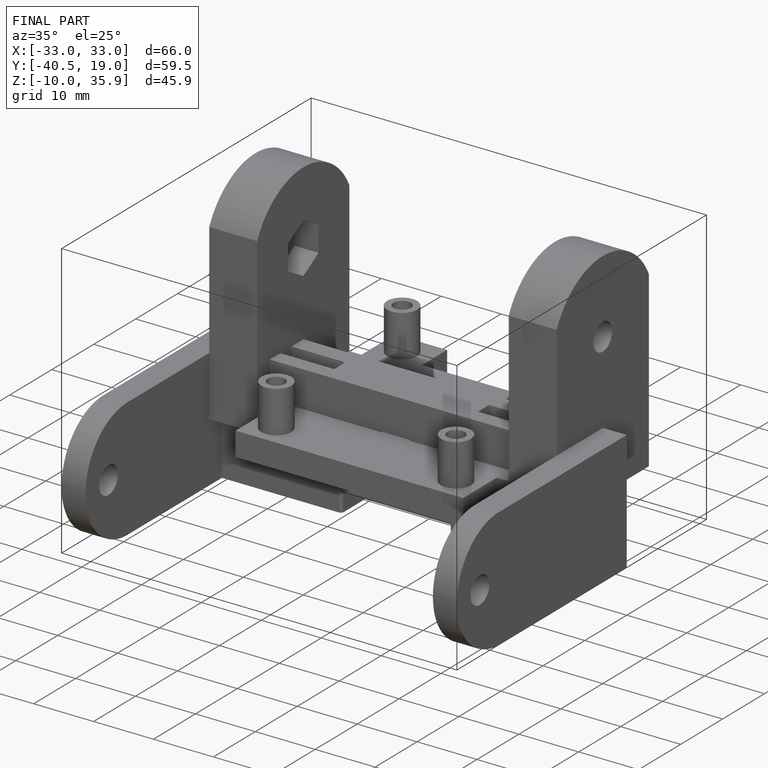
[diagram: finished part — iso view with bounding-box wireframe]
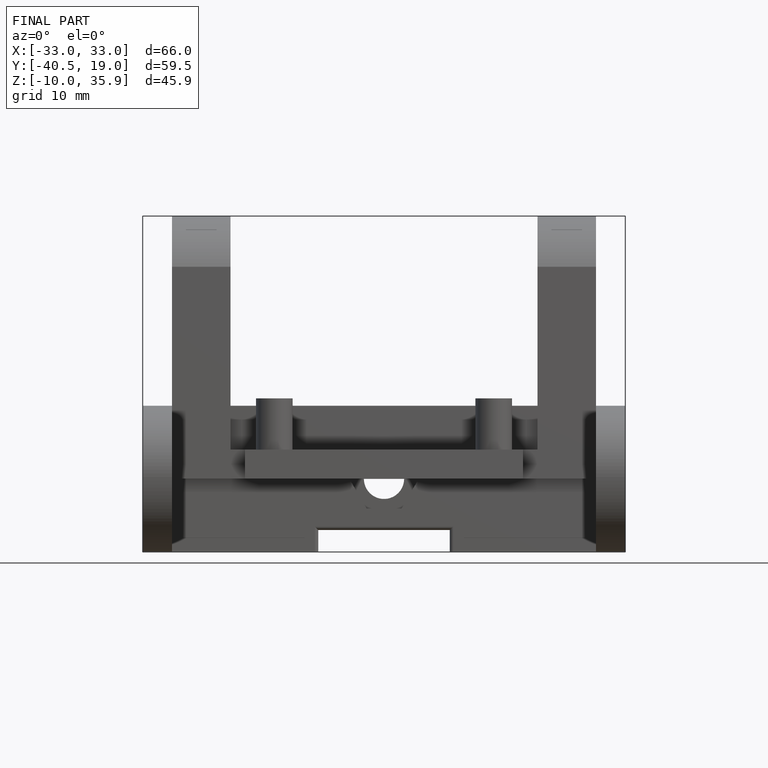
[diagram: finished part — front view with bounding-box wireframe]
